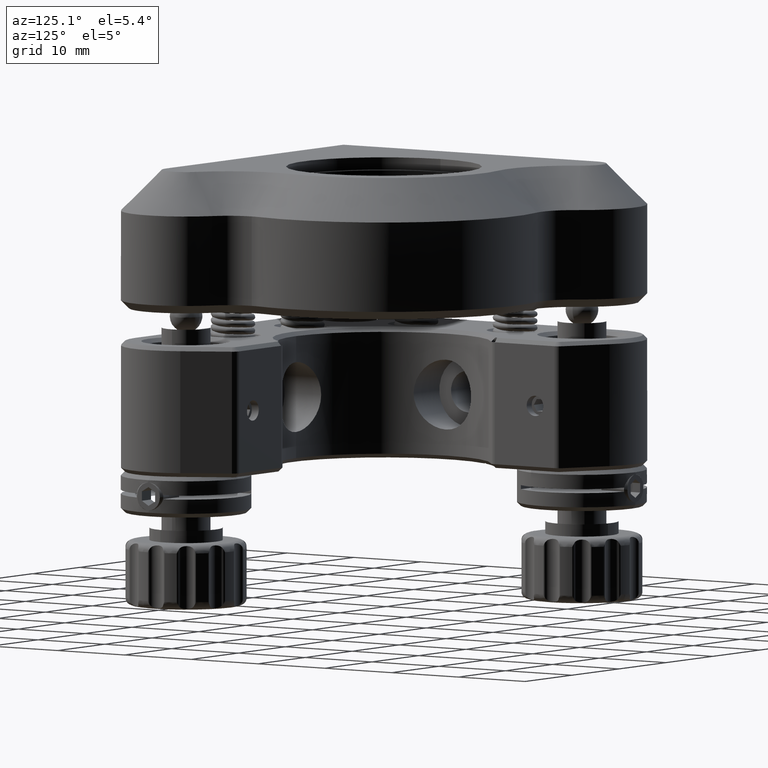
[diagram: clean part render]
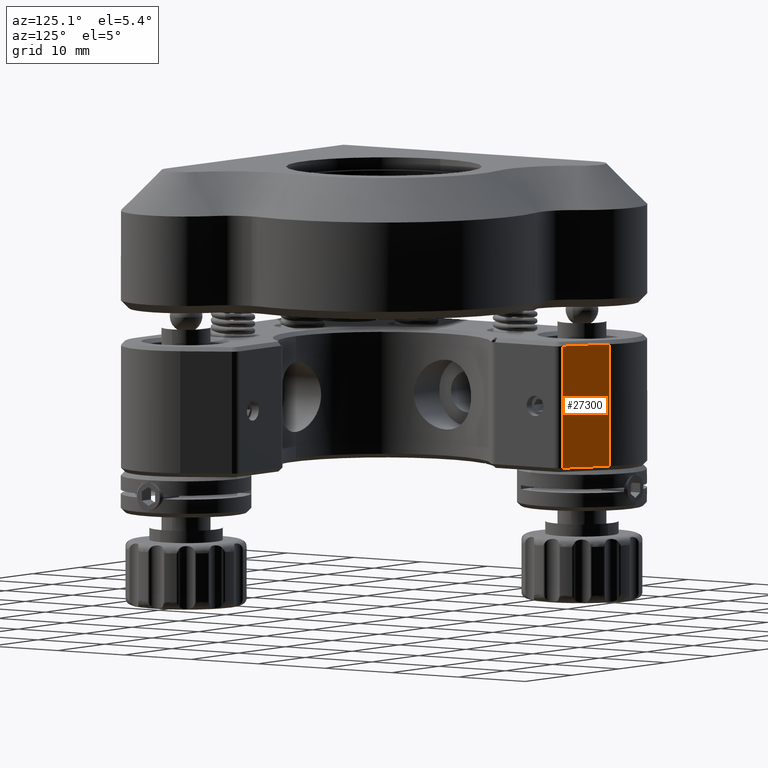
[diagram: same view with one face highlighted and labeled with its STEP entity id]
A machine part, auxiliary view. The second image highlights one B-rep face of the part: STEP entity #27300.
In plain terms, the highlighted planar face has unit normal (0.5, 0.866, 0).
Its self-contained STEP definition (entity closure, byte-faithful):
#254 = LINE ( 'NONE', #19581, #14058 ) ;
#1731 = AXIS2_PLACEMENT_3D ( 'NONE', #19321, #15294, #21646 ) ;
#1938 = VECTOR ( 'NONE', #23676, 1000.000000000000114 ) ;
#2473 = EDGE_CURVE ( 'NONE', #17360, #18178, #3663, .T. ) ;
#2878 = ORIENTED_EDGE ( 'NONE', *, *, #17764, .T. ) ;
#3663 = LINE ( 'NONE', #17193, #1938 ) ;
#4466 = DIRECTION ( 'NONE',  ( -0.000000000000000000, -0.000000000000000000, -1.000000000000000000 ) ) ;
#4556 = CARTESIAN_POINT ( 'NONE',  ( -6.958662382627251120, 18.52350944717831283, 22.72958492358062799 ) ) ;
#7380 = EDGE_CURVE ( 'NONE', #10654, #17360, #254, .T. ) ;
#8029 = VERTEX_POINT ( 'NONE', #21014 ) ;
#8061 = ORIENTED_EDGE ( 'NONE', *, *, #11989, .T. ) ;
#8296 = ORIENTED_EDGE ( 'NONE', *, *, #7380, .T. ) ;
#8760 = VECTOR ( 'NONE', #14081, 1000.000000000000114 ) ;
#10654 = VERTEX_POINT ( 'NONE', #15672 ) ;
#11810 = VECTOR ( 'NONE', #26709, 1000.000000000000000 ) ;
#11989 = EDGE_CURVE ( 'NONE', #18178, #8029, #17777, .T. ) ;
#12352 = CARTESIAN_POINT ( 'NONE',  ( 13.62575863029740653, 6.639088434253841875, 37.72958492358062443 ) ) ;
#14058 = VECTOR ( 'NONE', #4466, 1000.000000000000000 ) ;
#14081 = DIRECTION ( 'NONE',  ( 0.8660254037844418162, -0.4999999999999946154, 0.000000000000000000 ) ) ;
#15294 = DIRECTION ( 'NONE',  ( 0.4999999999999946154, 0.8660254037844418162, 0.000000000000000000 ) ) ;
#15672 = CARTESIAN_POINT ( 'NONE',  ( -1.458662382627218479, 15.34808296663539551, 37.72958492358062443 ) ) ;
#16520 = ORIENTED_EDGE ( 'NONE', *, *, #2473, .T. ) ;
#17193 = CARTESIAN_POINT ( 'NONE',  ( -6.958662382627252896, 18.52350944717831283, 22.72958492358062799 ) ) ;
#17265 = CARTESIAN_POINT ( 'NONE',  ( -1.458662382627218479, 15.34808296663539551, 22.72958492358062799 ) ) ;
#17360 = VERTEX_POINT ( 'NONE', #17265 ) ;
#17457 = FACE_OUTER_BOUND ( 'NONE', #22973, .T. ) ;
#17764 = EDGE_CURVE ( 'NONE', #8029, #10654, #23165, .T. ) ;
#17777 = LINE ( 'NONE', #20230, #11810 ) ;
#18178 = VERTEX_POINT ( 'NONE', #4556 ) ;
#19321 = CARTESIAN_POINT ( 'NONE',  ( 13.62575863029740653, 6.639088434253841875, 22.22958492358063154 ) ) ;
#19581 = CARTESIAN_POINT ( 'NONE',  ( -1.458662382627218479, 15.34808296663539551, 22.22958492358063154 ) ) ;
#20230 = CARTESIAN_POINT ( 'NONE',  ( -6.958662382627251120, 18.52350944717831283, 22.22958492358063154 ) ) ;
#21014 = CARTESIAN_POINT ( 'NONE',  ( -6.958662382627251120, 18.52350944717831283, 37.72958492358062443 ) ) ;
#21646 = DIRECTION ( 'NONE',  ( -0.8660254037844418162, 0.4999999999999946154, 0.000000000000000000 ) ) ;
#22973 = EDGE_LOOP ( 'NONE', ( #8296, #16520, #8061, #2878 ) ) ;
#23165 = LINE ( 'NONE', #12352, #8760 ) ;
#23658 = PLANE ( 'NONE',  #1731 ) ;
#23676 = DIRECTION ( 'NONE',  ( -0.8660254037844418162, 0.4999999999999946154, -0.000000000000000000 ) ) ;
#26709 = DIRECTION ( 'NONE',  ( 0.000000000000000000, 0.000000000000000000, 1.000000000000000000 ) ) ;
#27300 = ADVANCED_FACE ( 'NONE', ( #17457 ), #23658, .T. ) ;